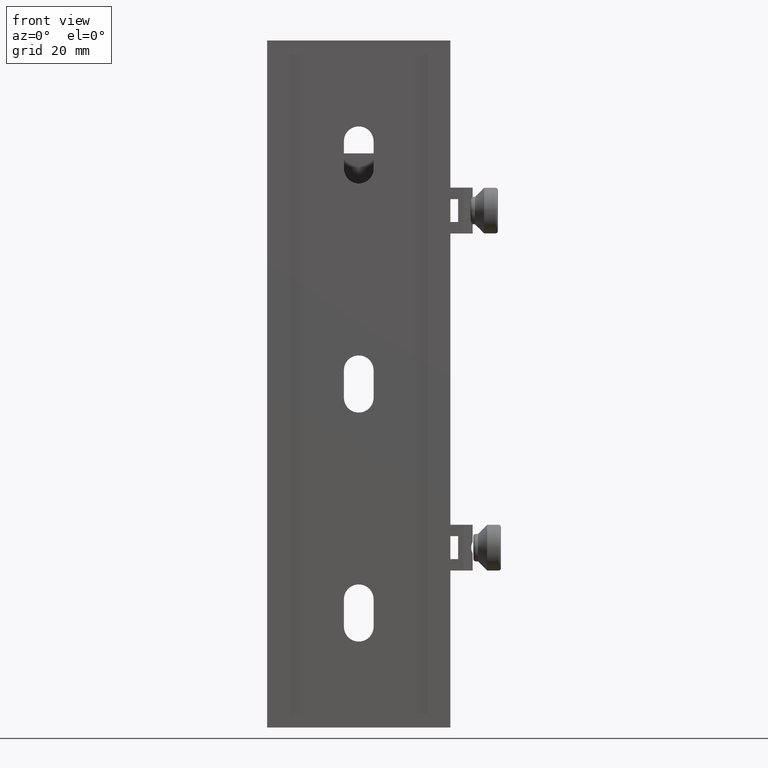
[diagram: clean part render]
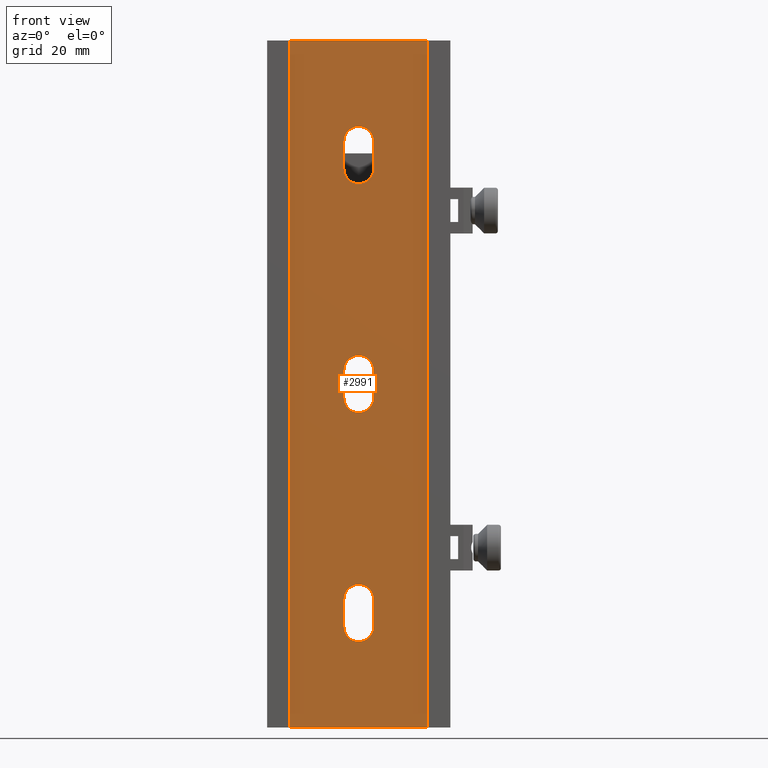
[diagram: same view with one face highlighted and labeled with its STEP entity id]
A machine part, front view. The second image highlights one B-rep face of the part: STEP entity #2991.
In plain terms, the highlighted planar face has unit normal (0, -1, 0).
Its self-contained STEP definition (entity closure, byte-faithful):
#6 = CARTESIAN_POINT ( 'NONE',  ( 14.99999999999996092, -5.999999999999996447, 294.6622748219313621 ) ) ;
#43 = DIRECTION ( 'NONE',  ( 0.000000000000000000, -1.000000000000000000, 0.000000000000000000 ) ) ;
#44 = CARTESIAN_POINT ( 'NONE',  ( 3.249999999999995559, -5.999999999999996447, -47.00000000000000711 ) ) ;
#47 = CARTESIAN_POINT ( 'NONE',  ( 14.99999999999998934, -5.999999999999996447, 75.00000000000001421 ) ) ;
#89 = LINE ( 'NONE', #6, #4902 ) ;
#108 = CARTESIAN_POINT ( 'NONE',  ( -3.249999999999990674, -5.999999999999996447, 5.970153145843334528E-16 ) ) ;
#115 = DIRECTION ( 'NONE',  ( 1.000000000000000000, 0.000000000000000000, 0.000000000000000000 ) ) ;
#215 = ORIENTED_EDGE ( 'NONE', *, *, #3405, .F. ) ;
#226 = VECTOR ( 'NONE', #2751, 1000.000000000000000 ) ;
#340 = VERTEX_POINT ( 'NONE', #809 ) ;
#389 = VECTOR ( 'NONE', #3570, 1000.000000000000000 ) ;
#442 = DIRECTION ( 'NONE',  ( 0.000000000000000000, -1.000000000000000000, 0.000000000000000000 ) ) ;
#494 = CARTESIAN_POINT ( 'NONE',  ( -3.249999999999998224, -5.999999999999996447, -2.999999999999999556 ) ) ;
#502 = ORIENTED_EDGE ( 'NONE', *, *, #4562, .F. ) ;
#529 = LINE ( 'NONE', #108, #542 ) ;
#542 = VECTOR ( 'NONE', #1854, 1000.000000000000000 ) ;
#557 = VECTOR ( 'NONE', #2054, 1000.000000000000000 ) ;
#621 = EDGE_CURVE ( 'NONE', #2609, #1519, #2194, .T. ) ;
#636 = EDGE_LOOP ( 'NONE', ( #502, #2910, #215, #2543 ) ) ;
#670 = DIRECTION ( 'NONE',  ( 1.000000000000000000, 0.000000000000000000, 0.000000000000000000 ) ) ;
#763 = DIRECTION ( 'NONE',  ( 1.000000000000000000, 0.000000000000000000, 0.000000000000000000 ) ) ;
#809 = CARTESIAN_POINT ( 'NONE',  ( -3.249999999999999556, -5.999999999999996447, -47.00000000000000711 ) ) ;
#838 = LINE ( 'NONE', #2587, #4591 ) ;
#869 = ORIENTED_EDGE ( 'NONE', *, *, #3263, .F. ) ;
#947 = DIRECTION ( 'NONE',  ( 1.000000000000000000, 0.000000000000000000, 0.000000000000000000 ) ) ;
#966 = DIRECTION ( 'NONE',  ( -1.236303256585107026E-16, 0.000000000000000000, 1.000000000000000000 ) ) ;
#1051 = VERTEX_POINT ( 'NONE', #4764 ) ;
#1116 = CIRCLE ( 'NONE', #1857, 3.249999999999997780 ) ;
#1144 = VERTEX_POINT ( 'NONE', #1809 ) ;
#1155 = DIRECTION ( 'NONE',  ( 0.000000000000000000, -1.000000000000000000, 0.000000000000000000 ) ) ;
#1158 = DIRECTION ( 'NONE',  ( 0.000000000000000000, -1.000000000000000000, 0.000000000000000000 ) ) ;
#1164 = CARTESIAN_POINT ( 'NONE',  ( 3.249999999999998224, -5.999999999999996447, 3.000000000000000000 ) ) ;
#1181 = DIRECTION ( 'NONE',  ( 0.000000000000000000, -1.000000000000000000, 0.000000000000000000 ) ) ;
#1184 = FACE_BOUND ( 'NONE', #636, .T. ) ;
#1192 = CIRCLE ( 'NONE', #1374, 3.249999999999997780 ) ;
#1216 = LINE ( 'NONE', #2966, #1938 ) ;
#1220 = EDGE_LOOP ( 'NONE', ( #3057, #2181, #2634, #2046 ) ) ;
#1287 = ORIENTED_EDGE ( 'NONE', *, *, #3971, .F. ) ;
#1293 = CARTESIAN_POINT ( 'NONE',  ( -2.407148620655123076E-16, -5.999999999999998224, 75.00000000000000000 ) ) ;
#1295 = VERTEX_POINT ( 'NONE', #3671 ) ;
#1368 = EDGE_CURVE ( 'NONE', #1838, #2525, #3357, .T. ) ;
#1374 = AXIS2_PLACEMENT_3D ( 'NONE', #5057, #1155, #670 ) ;
#1375 = CARTESIAN_POINT ( 'NONE',  ( 3.249999999999985345, -5.999999999999996447, -5.970153145843324667E-16 ) ) ;
#1519 = VERTEX_POINT ( 'NONE', #5338 ) ;
#1521 = EDGE_LOOP ( 'NONE', ( #2547, #1612, #2294, #869 ) ) ;
#1545 = EDGE_CURVE ( 'NONE', #5355, #340, #4158, .T. ) ;
#1562 = DIRECTION ( 'NONE',  ( 1.000000000000000000, 0.000000000000000000, 0.000000000000000000 ) ) ;
#1612 = ORIENTED_EDGE ( 'NONE', *, *, #5265, .T. ) ;
#1684 = DIRECTION ( 'NONE',  ( 1.000000000000000000, 0.000000000000000000, 0.000000000000000000 ) ) ;
#1698 = ORIENTED_EDGE ( 'NONE', *, *, #3503, .F. ) ;
#1784 = VECTOR ( 'NONE', #5659, 1000.000000000000000 ) ;
#1809 = CARTESIAN_POINT ( 'NONE',  ( 3.249999999999994671, -5.999999999999996447, 47.00000000000000711 ) ) ;
#1838 = VERTEX_POINT ( 'NONE', #2091 ) ;
#1854 = DIRECTION ( 'NONE',  ( -1.836970198721031167E-16, -0.000000000000000000, -1.000000000000000000 ) ) ;
#1857 = AXIS2_PLACEMENT_3D ( 'NONE', #3717, #2793, #115 ) ;
#1938 = VECTOR ( 'NONE', #763, 1000.000000000000000 ) ;
#1955 = CARTESIAN_POINT ( 'NONE',  ( -3.250000000000000000, -5.999999999999996447, 47.00000000000000711 ) ) ;
#1974 = EDGE_CURVE ( 'NONE', #4025, #2525, #89, .T. ) ;
#2046 = ORIENTED_EDGE ( 'NONE', *, *, #1368, .F. ) ;
#2054 = DIRECTION ( 'NONE',  ( -1.836970198721029441E-16, -0.000000000000000000, -1.000000000000000000 ) ) ;
#2091 = CARTESIAN_POINT ( 'NONE',  ( -15.00000000000001066, -5.999999999999996447, 75.00000000000001421 ) ) ;
#2092 = CARTESIAN_POINT ( 'NONE',  ( 3.249999999999994671, -5.999999999999996447, -53.00000000000000000 ) ) ;
#2105 = CARTESIAN_POINT ( 'NONE',  ( 5.510910596163088569E-16, -5.999999999999996447, 3.000000000000000000 ) ) ;
#2154 = DIRECTION ( 'NONE',  ( -1.836970198721031167E-16, -0.000000000000000000, -1.000000000000000000 ) ) ;
#2169 = DIRECTION ( 'NONE',  ( 1.000000000000000000, 0.000000000000000000, 0.000000000000000000 ) ) ;
#2181 = ORIENTED_EDGE ( 'NONE', *, *, #4773, .T. ) ;
#2194 = CIRCLE ( 'NONE', #5581, 3.249999999999997780 ) ;
#2294 = ORIENTED_EDGE ( 'NONE', *, *, #3533, .F. ) ;
#2525 = VERTEX_POINT ( 'NONE', #47 ) ;
#2543 = ORIENTED_EDGE ( 'NONE', *, *, #5620, .F. ) ;
#2547 = ORIENTED_EDGE ( 'NONE', *, *, #1545, .F. ) ;
#2587 = CARTESIAN_POINT ( 'NONE',  ( -3.249999999999998224, -5.999999999999996447, 5.970153145843342417E-16 ) ) ;
#2605 = LINE ( 'NONE', #4356, #389 ) ;
#2609 = VERTEX_POINT ( 'NONE', #494 ) ;
#2634 = ORIENTED_EDGE ( 'NONE', *, *, #1974, .T. ) ;
#2668 = EDGE_CURVE ( 'NONE', #3612, #1144, #3131, .T. ) ;
#2688 = VERTEX_POINT ( 'NONE', #1955 ) ;
#2751 = DIRECTION ( 'NONE',  ( -1.836970198721031167E-16, -0.000000000000000000, -1.000000000000000000 ) ) ;
#2793 = DIRECTION ( 'NONE',  ( 0.000000000000000000, -1.000000000000000000, 0.000000000000000000 ) ) ;
#2899 = CARTESIAN_POINT ( 'NONE',  ( -5.510910596163088569E-16, -5.999999999999996447, -3.000000000000000000 ) ) ;
#2910 = ORIENTED_EDGE ( 'NONE', *, *, #2668, .T. ) ;
#2966 = CARTESIAN_POINT ( 'NONE',  ( -2.407148620655123076E-16, -5.999999999999998224, -75.00000000000000000 ) ) ;
#2991 = ADVANCED_FACE ( 'NONE', ( #5522, #3310, #1184, #3338 ), #5147, .T. ) ;
#3057 = ORIENTED_EDGE ( 'NONE', *, *, #4451, .T. ) ;
#3098 = VERTEX_POINT ( 'NONE', #1164 ) ;
#3109 = CIRCLE ( 'NONE', #3660, 3.249999999999997780 ) ;
#3131 = LINE ( 'NONE', #1375, #5604 ) ;
#3160 = DIRECTION ( 'NONE',  ( -1.836970198721031167E-16, -0.000000000000000000, -1.000000000000000000 ) ) ;
#3263 = EDGE_CURVE ( 'NONE', #340, #1051, #529, .T. ) ;
#3310 = FACE_OUTER_BOUND ( 'NONE', #1220, .T. ) ;
#3338 = FACE_BOUND ( 'NONE', #1521, .T. ) ;
#3357 = LINE ( 'NONE', #1293, #1784 ) ;
#3405 = EDGE_CURVE ( 'NONE', #2688, #1144, #1192, .T. ) ;
#3444 = CARTESIAN_POINT ( 'NONE',  ( -3.249999999999999556, -5.999999999999996447, 53.00000000000000000 ) ) ;
#3478 = DIRECTION ( 'NONE',  ( 0.000000000000000000, -1.000000000000000000, 0.000000000000000000 ) ) ;
#3503 = EDGE_CURVE ( 'NONE', #3098, #5277, #3109, .T. ) ;
#3533 = EDGE_CURVE ( 'NONE', #1051, #5545, #4674, .T. ) ;
#3570 = DIRECTION ( 'NONE',  ( 1.236303256585107026E-16, 0.000000000000000000, -1.000000000000000000 ) ) ;
#3584 = CARTESIAN_POINT ( 'NONE',  ( -1.235505586806600375E-15, -5.999999999999996447, -47.00000000000000711 ) ) ;
#3612 = VERTEX_POINT ( 'NONE', #5287 ) ;
#3660 = AXIS2_PLACEMENT_3D ( 'NONE', #2105, #3478, #4345 ) ;
#3662 = ORIENTED_EDGE ( 'NONE', *, *, #621, .F. ) ;
#3671 = CARTESIAN_POINT ( 'NONE',  ( -15.00000000000003730, -5.999999999999998224, -75.00000000000000000 ) ) ;
#3717 = CARTESIAN_POINT ( 'NONE',  ( -1.235505586806600375E-15, -5.999999999999996447, 53.00000000000000000 ) ) ;
#3844 = VERTEX_POINT ( 'NONE', #3444 ) ;
#3960 = EDGE_LOOP ( 'NONE', ( #3662, #1287, #1698, #5468 ) ) ;
#3967 = CARTESIAN_POINT ( 'NONE',  ( -3.249999999999997335, -5.999999999999996447, 3.000000000000000444 ) ) ;
#3971 = EDGE_CURVE ( 'NONE', #5277, #2609, #838, .T. ) ;
#4025 = VERTEX_POINT ( 'NONE', #4847 ) ;
#4158 = CIRCLE ( 'NONE', #4893, 3.249999999999997780 ) ;
#4259 = CARTESIAN_POINT ( 'NONE',  ( -2.337687706039217300E-15, -5.999999999999996447, -53.00000000000000000 ) ) ;
#4260 = VECTOR ( 'NONE', #2154, 1000.000000000000000 ) ;
#4290 = AXIS2_PLACEMENT_3D ( 'NONE', #5609, #1158, #1684 ) ;
#4337 = DIRECTION ( 'NONE',  ( -1.836970198721029441E-16, -0.000000000000000000, -1.000000000000000000 ) ) ;
#4345 = DIRECTION ( 'NONE',  ( 1.000000000000000000, 0.000000000000000000, 0.000000000000000000 ) ) ;
#4356 = CARTESIAN_POINT ( 'NONE',  ( -15.00000000000003730, -5.999999999999996447, 294.6622748219313621 ) ) ;
#4451 = EDGE_CURVE ( 'NONE', #1838, #1295, #2605, .T. ) ;
#4504 = CARTESIAN_POINT ( 'NONE',  ( 3.250000000000003553, -5.999999999999996447, -5.970153145843358194E-16 ) ) ;
#4562 = EDGE_CURVE ( 'NONE', #3612, #3844, #1116, .T. ) ;
#4591 = VECTOR ( 'NONE', #4337, 1000.000000000000000 ) ;
#4634 = CARTESIAN_POINT ( 'NONE',  ( 3.249999999999996447, -5.999999999999996447, -5.970153145843339459E-16 ) ) ;
#4670 = LINE ( 'NONE', #5097, #4260 ) ;
#4674 = CIRCLE ( 'NONE', #5316, 3.249999999999997780 ) ;
#4718 = EDGE_CURVE ( 'NONE', #3098, #1519, #5523, .T. ) ;
#4764 = CARTESIAN_POINT ( 'NONE',  ( -3.250000000000000000, -5.999999999999996447, -53.00000000000000000 ) ) ;
#4773 = EDGE_CURVE ( 'NONE', #1295, #4025, #1216, .T. ) ;
#4847 = CARTESIAN_POINT ( 'NONE',  ( 15.00000000000000711, -5.999999999999996447, -75.00000000000001421 ) ) ;
#4893 = AXIS2_PLACEMENT_3D ( 'NONE', #3584, #43, #947 ) ;
#4902 = VECTOR ( 'NONE', #966, 1000.000000000000000 ) ;
#5057 = CARTESIAN_POINT ( 'NONE',  ( -2.337687706039217300E-15, -5.999999999999996447, 47.00000000000000711 ) ) ;
#5097 = CARTESIAN_POINT ( 'NONE',  ( -3.250000000000008882, -5.999999999999996447, 5.970153145843367069E-16 ) ) ;
#5147 = PLANE ( 'NONE',  #4290 ) ;
#5265 = EDGE_CURVE ( 'NONE', #5355, #5545, #5308, .T. ) ;
#5277 = VERTEX_POINT ( 'NONE', #3967 ) ;
#5287 = CARTESIAN_POINT ( 'NONE',  ( 3.249999999999995559, -5.999999999999996447, 53.00000000000000000 ) ) ;
#5308 = LINE ( 'NONE', #4504, #226 ) ;
#5316 = AXIS2_PLACEMENT_3D ( 'NONE', #4259, #442, #2169 ) ;
#5338 = CARTESIAN_POINT ( 'NONE',  ( 3.249999999999996447, -5.999999999999996447, -3.000000000000000000 ) ) ;
#5355 = VERTEX_POINT ( 'NONE', #44 ) ;
#5468 = ORIENTED_EDGE ( 'NONE', *, *, #4718, .T. ) ;
#5522 = FACE_BOUND ( 'NONE', #3960, .T. ) ;
#5523 = LINE ( 'NONE', #4634, #557 ) ;
#5545 = VERTEX_POINT ( 'NONE', #2092 ) ;
#5581 = AXIS2_PLACEMENT_3D ( 'NONE', #2899, #1181, #1562 ) ;
#5604 = VECTOR ( 'NONE', #3160, 1000.000000000000000 ) ;
#5609 = CARTESIAN_POINT ( 'NONE',  ( 0.000000000000000000, -5.999999999999996447, 0.000000000000000000 ) ) ;
#5620 = EDGE_CURVE ( 'NONE', #3844, #2688, #4670, .T. ) ;
#5659 = DIRECTION ( 'NONE',  ( 1.000000000000000000, 0.000000000000000000, 0.000000000000000000 ) ) ;